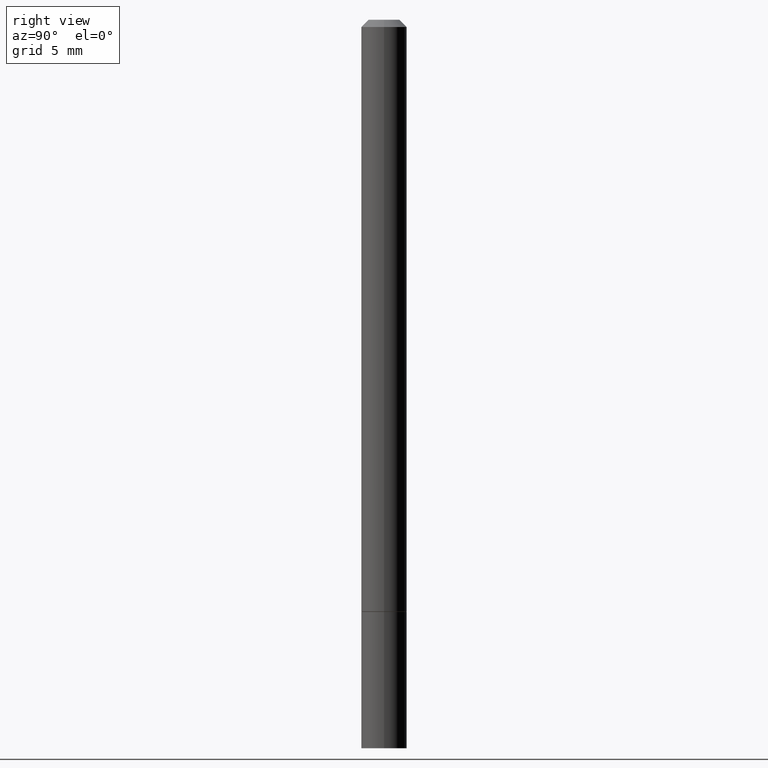
[diagram: clean part render]
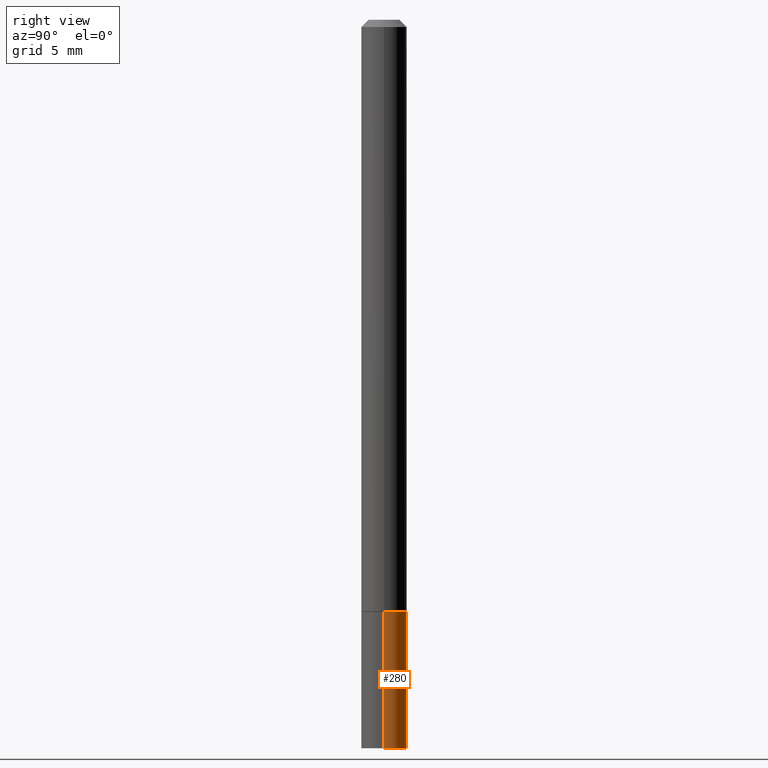
[diagram: same view with one face highlighted and labeled with its STEP entity id]
A machine part, right view. The second image highlights one B-rep face of the part: STEP entity #280.
In plain terms, the highlighted cylindrical surface (edge-blend (fillet) strip) has radius 1.5875 mm, axis along (-0, 0, 1).
Its self-contained STEP definition (entity closure, byte-faithful):
#11 = EDGE_CURVE ( 'NONE', #184, #65, #170, .T. ) ;
#25 = DIRECTION ( 'NONE',  ( 1.000000000000000000, -6.982962677686267499E-15, 4.876176775795935793E-29 ) ) ;
#44 = VECTOR ( 'NONE', #145, 39.37007874015748143 ) ;
#46 = DIRECTION ( 'NONE',  ( -2.445468806185136597E-29, 3.491481338843145583E-15, 1.000000000000000000 ) ) ;
#65 = VERTEX_POINT ( 'NONE', #75 ) ;
#75 = CARTESIAN_POINT ( 'NONE',  ( 0.06250000000000001388, -6.110092342975503093E-15, -1.625000000000000000 ) ) ;
#83 = DIRECTION ( 'NONE',  ( -2.445468806185136597E-29, 3.491481338843145583E-15, 1.000000000000000000 ) ) ;
#109 = VERTEX_POINT ( 'NONE', #150 ) ;
#117 = VECTOR ( 'NONE', #199, 39.37007874015748143 ) ;
#119 = ORIENTED_EDGE ( 'NONE', *, *, #335, .T. ) ;
#126 = AXIS2_PLACEMENT_3D ( 'NONE', #330, #46, #25 ) ;
#136 = DIRECTION ( 'NONE',  ( 1.000000000000000000, -6.982962677686261189E-15, 0.000000000000000000 ) ) ;
#145 = DIRECTION ( 'NONE',  ( -2.445468806185136877E-29, 3.491481338843145188E-15, 1.000000000000000000 ) ) ;
#150 = CARTESIAN_POINT ( 'NONE',  ( -0.06250000000000001388, -5.884220716803138678E-15, -1.625000000000000000 ) ) ;
#159 = ORIENTED_EDGE ( 'NONE', *, *, #11, .F. ) ;
#164 = LINE ( 'NONE', #195, #117 ) ;
#169 = AXIS2_PLACEMENT_3D ( 'NONE', #242, #83, #136 ) ;
#170 = LINE ( 'NONE', #331, #44 ) ;
#181 = EDGE_CURVE ( 'NONE', #65, #109, #333, .T. ) ;
#182 = CARTESIAN_POINT ( 'NONE',  ( -0.06250000000000001388, -5.884220716803138678E-15, -2.000000000000000000 ) ) ;
#184 = VERTEX_POINT ( 'NONE', #236 ) ;
#191 = DIRECTION ( 'NONE',  ( 1.000000000000000000, -6.982962677686261189E-15, 0.000000000000000000 ) ) ;
#195 = CARTESIAN_POINT ( 'NONE',  ( -0.06250000000000001388, 4.440892098500627148E-16, -3.074334431409317165E-30 ) ) ;
#199 = DIRECTION ( 'NONE',  ( -2.445468806185136877E-29, 3.491481338843145188E-15, 1.000000000000000000 ) ) ;
#224 = CARTESIAN_POINT ( 'NONE',  ( 4.890937612370273194E-29, -6.982962677686291165E-15, -2.000000000000000000 ) ) ;
#236 = CARTESIAN_POINT ( 'NONE',  ( 0.06250000000000001388, -7.419397845041682046E-15, -2.000000000000000000 ) ) ;
#242 = CARTESIAN_POINT ( 'NONE',  ( 3.973886810050846970E-29, -5.673657175620112213E-15, -1.625000000000000000 ) ) ;
#244 = CYLINDRICAL_SURFACE ( 'NONE', #126, 0.06250000000000001388 ) ;
#260 = VERTEX_POINT ( 'NONE', #182 ) ;
#273 = ORIENTED_EDGE ( 'NONE', *, *, #314, .T. ) ;
#280 = ADVANCED_FACE ( 'NONE', ( #300 ), #244, .T. ) ;
#298 = CIRCLE ( 'NONE', #312, 0.06250000000000001388 ) ;
#300 = FACE_OUTER_BOUND ( 'NONE', #360, .T. ) ;
#312 = AXIS2_PLACEMENT_3D ( 'NONE', #224, #343, #191 ) ;
#314 = EDGE_CURVE ( 'NONE', #260, #109, #164, .T. ) ;
#330 = CARTESIAN_POINT ( 'NONE',  ( 0.000000000000000000, 0.000000000000000000, 0.000000000000000000 ) ) ;
#331 = CARTESIAN_POINT ( 'NONE',  ( 0.06250000000000001388, -4.364351673553918173E-16, 3.047610484872460571E-30 ) ) ;
#333 = CIRCLE ( 'NONE', #169, 0.06250000000000001388 ) ;
#335 = EDGE_CURVE ( 'NONE', #184, #260, #298, .T. ) ;
#343 = DIRECTION ( 'NONE',  ( -2.445468806185136597E-29, 3.491481338843145583E-15, 1.000000000000000000 ) ) ;
#360 = EDGE_LOOP ( 'NONE', ( #119, #273, #363, #159 ) ) ;
#363 = ORIENTED_EDGE ( 'NONE', *, *, #181, .F. ) ;